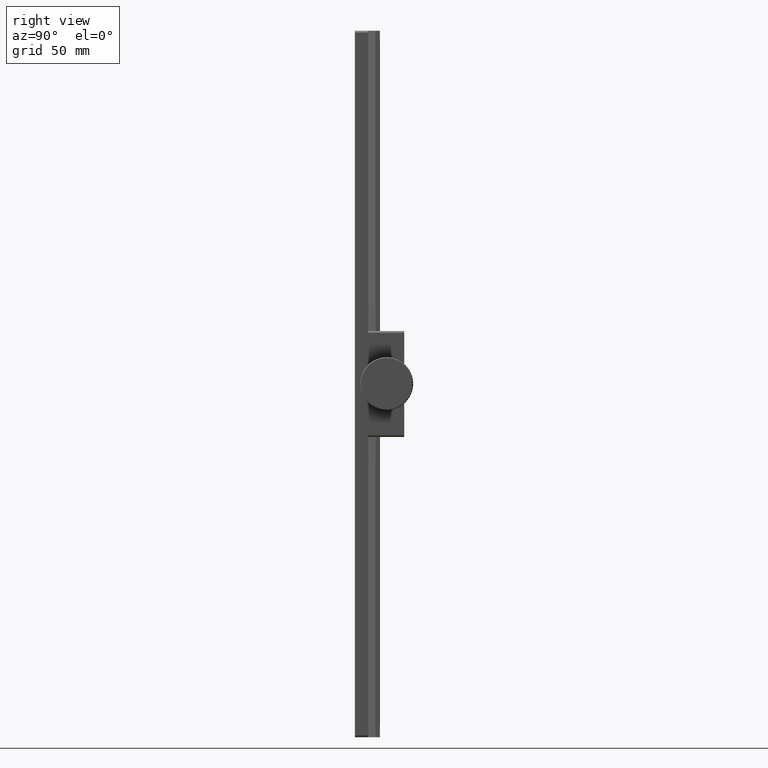
[diagram: clean part render]
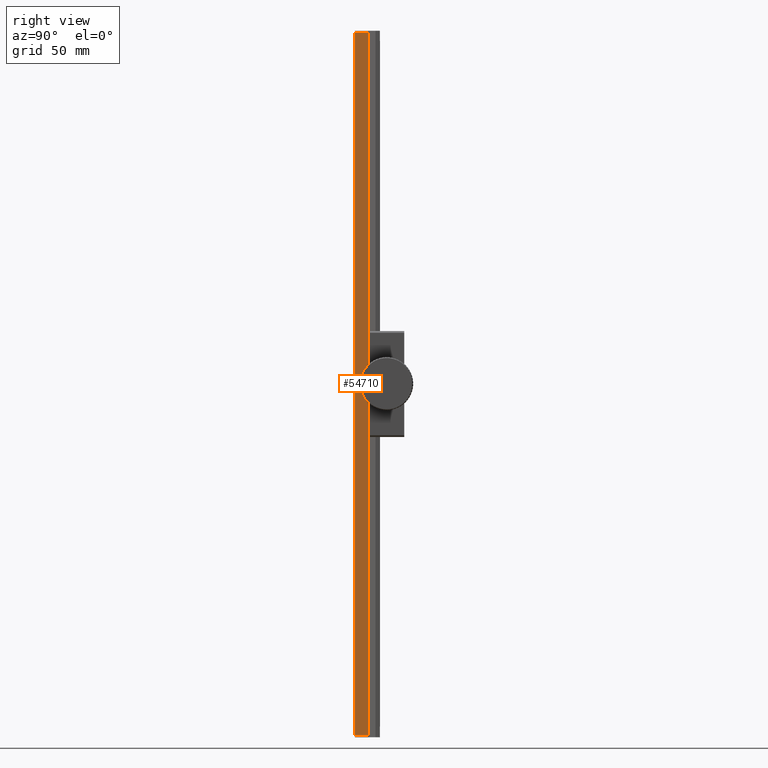
[diagram: same view with one face highlighted and labeled with its STEP entity id]
A machine part, right view. The second image highlights one B-rep face of the part: STEP entity #54710.
In plain terms, the highlighted planar face has unit normal (-1, -0, 0).
Its self-contained STEP definition (entity closure, byte-faithful):
#5785 = CARTESIAN_POINT ( 'NONE',  ( 94.50156960994749511, 64.60272800986791708, 14.82318078334726685 ) ) ;
#6805 = LINE ( 'NONE', #5785, #54654 ) ;
#7457 = PLANE ( 'NONE',  #98870 ) ;
#8944 = VERTEX_POINT ( 'NONE', #19262 ) ;
#10725 = DIRECTION ( 'NONE',  ( 0.000000000000000000, -0.000000000000000000, -1.000000000000000000 ) ) ;
#16772 = EDGE_LOOP ( 'NONE', ( #93637, #96033, #23131, #98481 ) ) ;
#19262 = CARTESIAN_POINT ( 'NONE',  ( 94.50156960994749511, 64.60272800986791708, 412.8231807833473681 ) ) ;
#19988 = CARTESIAN_POINT ( 'NONE',  ( 94.50156960994750932, 64.60272800986791708, 14.82318078334729350 ) ) ;
#23131 = ORIENTED_EDGE ( 'NONE', *, *, #78192, .F. ) ;
#24707 = DIRECTION ( 'NONE',  ( -0.000000000000000000, -0.000000000000000000, -1.000000000000000000 ) ) ;
#26915 = EDGE_CURVE ( 'NONE', #65960, #47498, #63717, .T. ) ;
#27346 = CARTESIAN_POINT ( 'NONE',  ( 94.50156960994749511, 64.60272800986791708, 413.8231807833473681 ) ) ;
#31418 = CARTESIAN_POINT ( 'NONE',  ( 94.50156960994752353, 57.10272800986790998, 412.8231807833473681 ) ) ;
#33756 = DIRECTION ( 'NONE',  ( -6.982962677686266711E-15, 1.000000000000000000, -0.000000000000000000 ) ) ;
#33868 = VECTOR ( 'NONE', #10725, 1000.000000000000000 ) ;
#44999 = VERTEX_POINT ( 'NONE', #19988 ) ;
#47498 = VERTEX_POINT ( 'NONE', #100746 ) ;
#51079 = EDGE_CURVE ( 'NONE', #44999, #47498, #6805, .T. ) ;
#52197 = VECTOR ( 'NONE', #33756, 1000.000000000000000 ) ;
#54654 = VECTOR ( 'NONE', #62419, 1000.000000000000000 ) ;
#54710 = ADVANCED_FACE ( 'NONE', ( #54763 ), #7457, .F. ) ;
#54763 = FACE_OUTER_BOUND ( 'NONE', #16772, .T. ) ;
#58175 = LINE ( 'NONE', #73769, #52197 ) ;
#61552 = DIRECTION ( 'NONE',  ( -1.000000000000000000, -6.982962677686266711E-15, 0.000000000000000000 ) ) ;
#62419 = DIRECTION ( 'NONE',  ( 6.982962677686266711E-15, -1.000000000000000000, 0.000000000000000000 ) ) ;
#63717 = LINE ( 'NONE', #64229, #74756 ) ;
#64229 = CARTESIAN_POINT ( 'NONE',  ( 94.50156960994752353, 57.10272800986790998, 413.8231807833473681 ) ) ;
#65960 = VERTEX_POINT ( 'NONE', #31418 ) ;
#71383 = CARTESIAN_POINT ( 'NONE',  ( 94.50156960994749511, 64.60272800986791708, 413.8231807833473681 ) ) ;
#73769 = CARTESIAN_POINT ( 'NONE',  ( 94.50156960994749511, 64.60272800986791708, 412.8231807833473681 ) ) ;
#74756 = VECTOR ( 'NONE', #24707, 1000.000000000000000 ) ;
#78192 = EDGE_CURVE ( 'NONE', #65960, #8944, #58175, .T. ) ;
#79488 = EDGE_CURVE ( 'NONE', #8944, #44999, #89270, .T. ) ;
#89270 = LINE ( 'NONE', #27346, #33868 ) ;
#92757 = DIRECTION ( 'NONE',  ( 6.982962677686266711E-15, -1.000000000000000000, 0.000000000000000000 ) ) ;
#93637 = ORIENTED_EDGE ( 'NONE', *, *, #51079, .F. ) ;
#96033 = ORIENTED_EDGE ( 'NONE', *, *, #79488, .F. ) ;
#98481 = ORIENTED_EDGE ( 'NONE', *, *, #26915, .T. ) ;
#98870 = AXIS2_PLACEMENT_3D ( 'NONE', #71383, #61552, #92757 ) ;
#100746 = CARTESIAN_POINT ( 'NONE',  ( 94.50156960994752353, 57.10272800986790287, 14.82318078334722955 ) ) ;